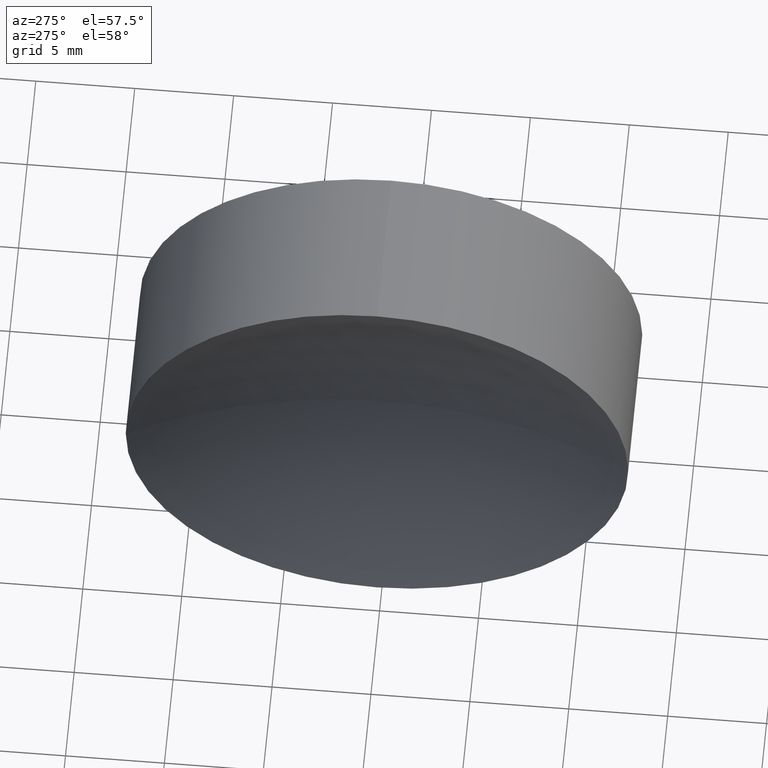
[diagram: clean part render]
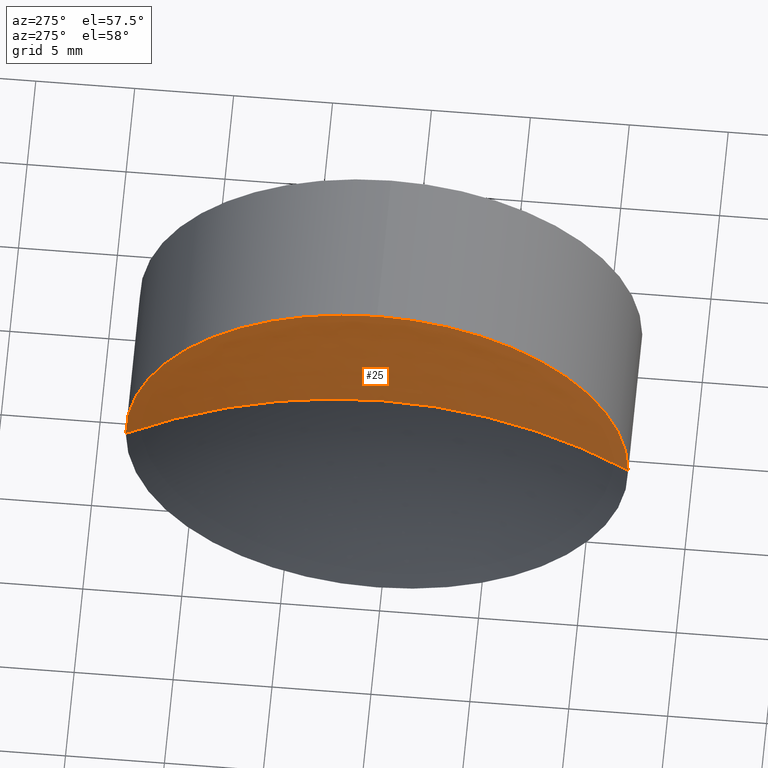
[diagram: same view with one face highlighted and labeled with its STEP entity id]
A machine part, auxiliary view. The second image highlights one B-rep face of the part: STEP entity #25.
In plain terms, the highlighted spherical surface has radius 27.82 mm.
Its self-contained STEP definition (entity closure, byte-faithful):
#6 = DIRECTION ( 'NONE',  ( -1.000000000000000000, -0.0000000000000000000, -0.0000000000000000000 ) ) ;
#9 = DIRECTION ( 'NONE',  ( 0.0000000000000000000, 1.224646799147353200E-016, -1.000000000000000000 ) ) ;
#25 = ADVANCED_FACE ( 'NONE', ( #119 ), #81, .F. ) ;
#30 = AXIS2_PLACEMENT_3D ( 'NONE', #115, #159, #95 ) ;
#44 = ORIENTED_EDGE ( 'NONE', *, *, #74, .F. ) ;
#58 = CARTESIAN_POINT ( 'NONE',  ( 116.0347215457702200, 65.22260287298739500, 12.70000000000000300 ) ) ;
#65 = CIRCLE ( 'NONE', #166, 27.81999999999999700 ) ;
#74 = EDGE_CURVE ( 'NONE', #231, #184, #65, .T. ) ;
#76 = ORIENTED_EDGE ( 'NONE', *, *, #193, .T. ) ;
#78 = CARTESIAN_POINT ( 'NONE',  ( 91.28270344622933400, 65.22260287298738000, 0.0000000000000000000 ) ) ;
#80 = DIRECTION ( 'NONE',  ( 0.0000000000000000000, 0.0000000000000000000, 1.000000000000000000 ) ) ;
#81 = SPHERICAL_SURFACE ( 'NONE', #30, 27.82000000000000000 ) ;
#95 = DIRECTION ( 'NONE',  ( 0.0000000000000000000, 1.000000000000000000, 0.0000000000000000000 ) ) ;
#97 = DIRECTION ( 'NONE',  ( 1.000000000000000000, 0.0000000000000000000, 0.0000000000000000000 ) ) ;
#99 = CARTESIAN_POINT ( 'NONE',  ( 119.1027034462293400, 65.22260287298738000, 0.0000000000000000000 ) ) ;
#106 = CARTESIAN_POINT ( 'NONE',  ( 116.0347215457702200, 77.92260287298738300, 0.0000000000000000000 ) ) ;
#111 = DIRECTION ( 'NONE',  ( 0.0000000000000000000, 0.0000000000000000000, 1.000000000000000000 ) ) ;
#115 = CARTESIAN_POINT ( 'NONE',  ( 91.28270344622933400, 65.22260287298738000, 0.0000000000000000000 ) ) ;
#116 = DIRECTION ( 'NONE',  ( -1.000000000000000000, -0.0000000000000000000, -0.0000000000000000000 ) ) ;
#117 = DIRECTION ( 'NONE',  ( 0.0000000000000000000, 0.0000000000000000000, 1.000000000000000000 ) ) ;
#118 = CIRCLE ( 'NONE', #169, 27.81999999999999700 ) ;
#119 = FACE_OUTER_BOUND ( 'NONE', #216, .T. ) ;
#120 = CARTESIAN_POINT ( 'NONE',  ( 116.0347215457702200, 52.52260287298737800, -1.555301434917137800E-015 ) ) ;
#126 = ORIENTED_EDGE ( 'NONE', *, *, #129, .T. ) ;
#127 = CIRCLE ( 'NONE', #141, 12.70000000000000300 ) ;
#129 = EDGE_CURVE ( 'NONE', #231, #172, #118, .T. ) ;
#131 = ORIENTED_EDGE ( 'NONE', *, *, #211, .T. ) ;
#135 = CARTESIAN_POINT ( 'NONE',  ( 116.0347215457702200, 65.22260287298739500, 0.0000000000000000000 ) ) ;
#136 = VERTEX_POINT ( 'NONE', #58 ) ;
#141 = AXIS2_PLACEMENT_3D ( 'NONE', #220, #116, #117 ) ;
#149 = DIRECTION ( 'NONE',  ( 0.0000000000000000000, 1.000000000000000000, 1.224646799147353200E-016 ) ) ;
#159 = DIRECTION ( 'NONE',  ( 0.0000000000000000000, 0.0000000000000000000, -1.000000000000000000 ) ) ;
#163 = CIRCLE ( 'NONE', #206, 12.70000000000000300 ) ;
#166 = AXIS2_PLACEMENT_3D ( 'NONE', #78, #111, #97 ) ;
#169 = AXIS2_PLACEMENT_3D ( 'NONE', #185, #9, #149 ) ;
#172 = VERTEX_POINT ( 'NONE', #120 ) ;
#184 = VERTEX_POINT ( 'NONE', #106 ) ;
#185 = CARTESIAN_POINT ( 'NONE',  ( 91.28270344622933400, 65.22260287298738000, 0.0000000000000000000 ) ) ;
#193 = EDGE_CURVE ( 'NONE', #172, #136, #163, .T. ) ;
#206 = AXIS2_PLACEMENT_3D ( 'NONE', #135, #6, #80 ) ;
#211 = EDGE_CURVE ( 'NONE', #136, #184, #127, .T. ) ;
#216 = EDGE_LOOP ( 'NONE', ( #44, #126, #76, #131 ) ) ;
#220 = CARTESIAN_POINT ( 'NONE',  ( 116.0347215457702200, 65.22260287298739500, 0.0000000000000000000 ) ) ;
#231 = VERTEX_POINT ( 'NONE', #99 ) ;